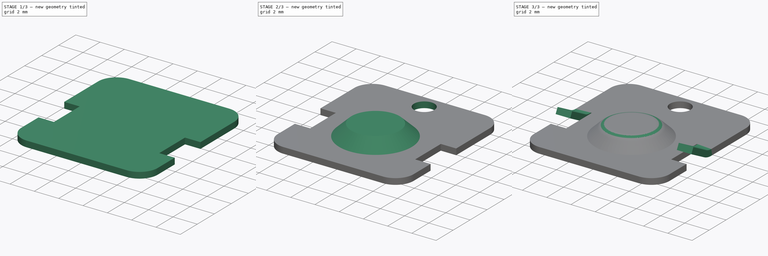
[diagram: build sequence overview — one tinted view per stage of 3, left to right]
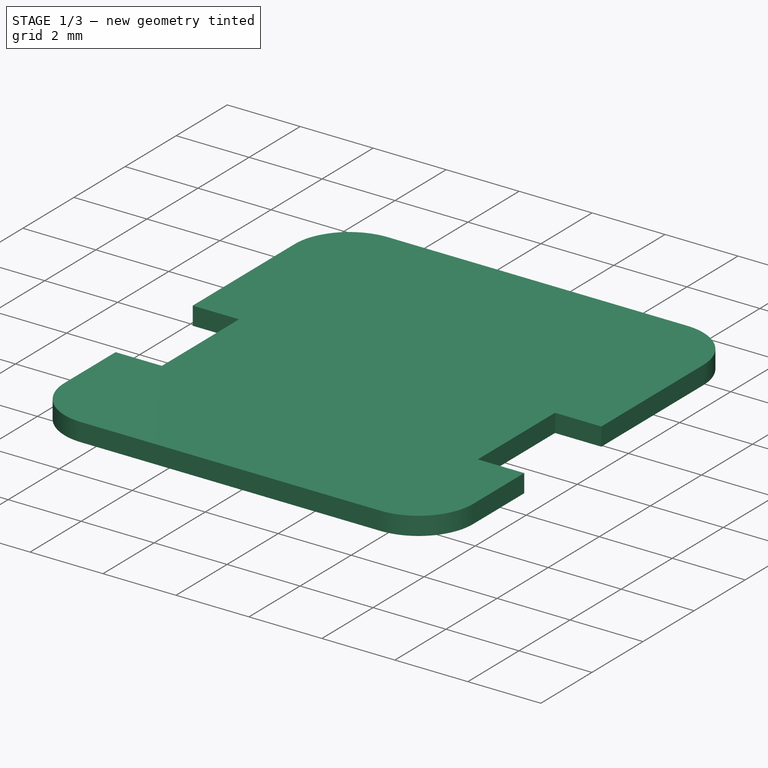
[diagram: stage 1 of 3 — iso view after this stage's code; geometry added in this stage tinted green]
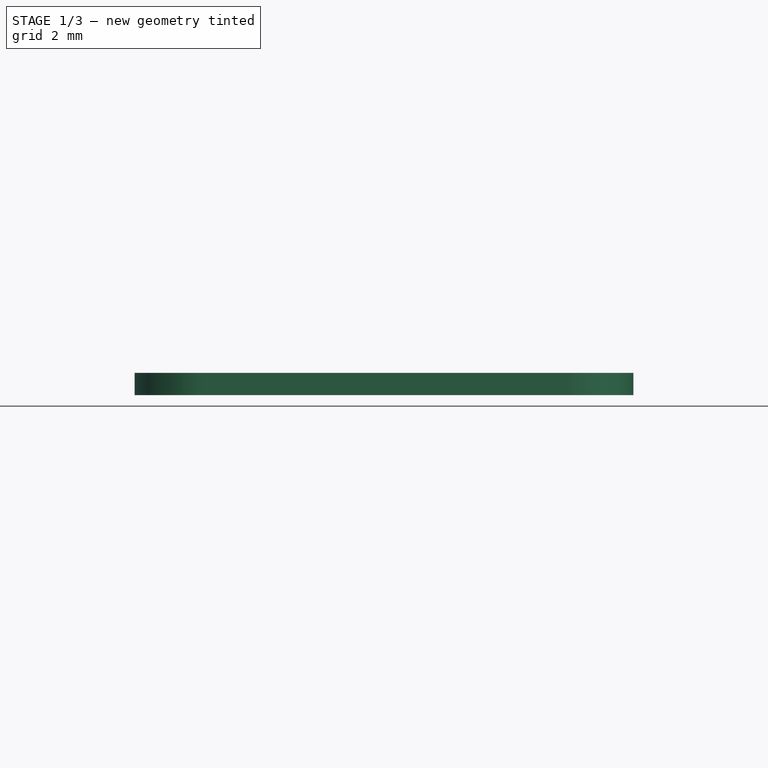
[diagram: stage 1 of 3 — front view after this stage's code; geometry added in this stage tinted green]
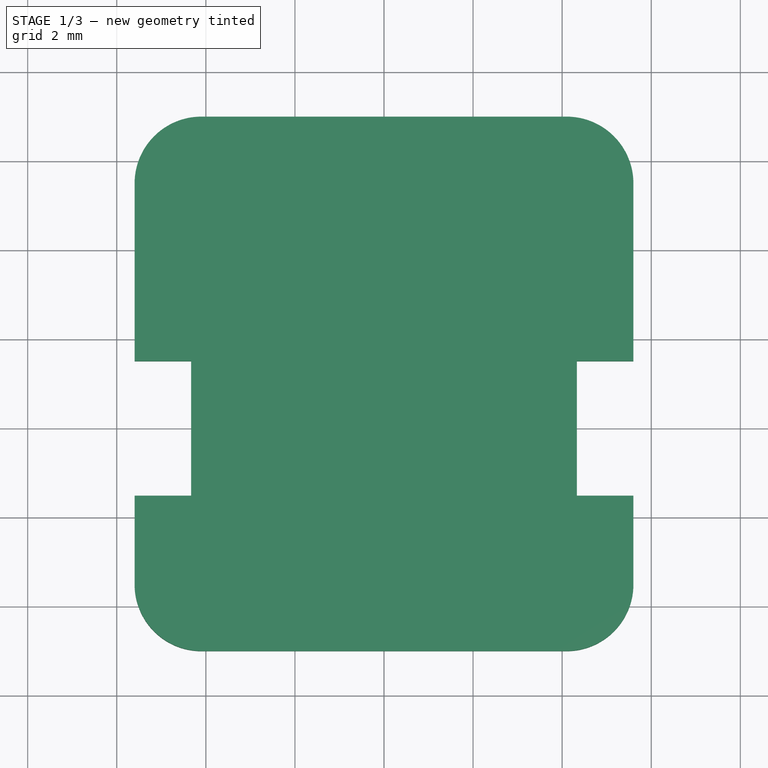
[diagram: stage 1 of 3 — top view after this stage's code; geometry added in this stage tinted green]
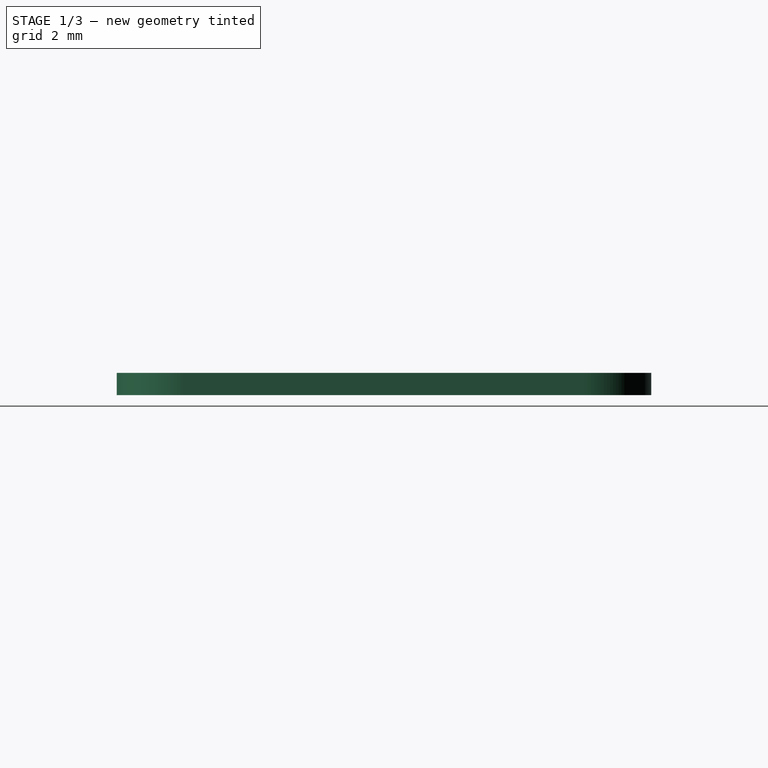
[diagram: stage 1 of 3 — right view after this stage's code; geometry added in this stage tinted green]
FCSTD DOCUMENT  (FreeCAD 0.19R24291 (Git))
Label: Battery_Contact_Flat
Comment: Keystone 5219, 'AA' Male Battery Contact
License: Creative Commons Attribution-NonCommercial-ShareAlike
LicenseURL: http://creativecommons.org/licenses/by-nc-sa/4.0/
objects: Sketcher::SketchObject×5, PartDesign::Pad×2, PartDesign::Hole×2, PartDesign::Fillet×2, PartDesign::CoordinateSystem×1, PartDesign::Revolution×1, PartDesign::Mirrored×1, PartDesign::Body×1, App::Part×1
note: 22 computed .brp shape members not serialized (recipe doc carries the construction recipe); baked Part::Feature solids carry a one-line shape summary decoded from their .brp

FEATURE [PartDesign::CoordinateSystem] LCS_0
  AttacherType = Attacher::AttachEngine3D
  MapMode = 2
  Support = -> [X_Axis]
FEATURE [Sketcher::SketchObject] Sketch
  FullyConstrained = true
  MapMode = 5
  Support = -> [XY_Plane001]
  sketch-geometry (19):
    g0: LineSegment StartX=0 StartY=-5 StartZ=0 EndX=5.6 EndY=-5 EndZ=0
    g1: LineSegment StartX=5.6 StartY=7 StartZ=0 EndX=1.5 EndY=7 EndZ=0
    g2: LineSegment StartX=1.5 StartY=7 StartZ=0 EndX=1.5 EndY=11.84 EndZ=0
    g3: ArcOfCircle CenterX=0 CenterY=11.84 CenterZ=0 NormalX=0 NormalY=0 NormalZ=1 AngleXU=0 Radius=1.5 StartAngle=3e-16 EndAngle=1.5708
    g4: LineSegment StartX=0 StartY=-5 StartZ=0 EndX=-5.6 EndY=-5 EndZ=0
    g5: LineSegment StartX=-5.6 StartY=7 StartZ=0 EndX=-1.5 EndY=7 EndZ=0
    g6: LineSegment StartX=-1.5 StartY=7 StartZ=0 EndX=-1.5 EndY=11.84 EndZ=0
    g7: ArcOfCircle CenterX=0 CenterY=11.84 CenterZ=0 NormalX=0 NormalY=0 NormalZ=1 AngleXU=0 Radius=1.5 StartAngle=1.5708 EndAngle=3.14159
    g8: LineSegment StartX=5.6 StartY=7 StartZ=0 EndX=5.6 EndY=1.51 EndZ=0
    g9: LineSegment StartX=5.6 StartY=1.51 StartZ=0 EndX=4.33 EndY=1.51 EndZ=0
    g10: LineSegment StartX=4.33 StartY=1.51 StartZ=0 EndX=4.33 EndY=-1.51 EndZ=0
    g11: LineSegment StartX=4.33 StartY=-1.51 StartZ=0 EndX=5.6 EndY=-1.51 EndZ=0
    g12: LineSegment StartX=5.6 StartY=-1.51 StartZ=0 EndX=5.6 EndY=-5 EndZ=0
    g13: LineSegment StartX=-5.6 StartY=1.51 StartZ=0 EndX=-4.33 EndY=1.51 EndZ=0
    g14: LineSegment StartX=-5.6 StartY=7 StartZ=0 EndX=-5.6 EndY=1.51 EndZ=0
    g15: LineSegment StartX=-4.33 StartY=1.51 StartZ=0 EndX=-4.33 EndY=-1.51 EndZ=0
    g16: LineSegment StartX=-5.6 StartY=-1.51 StartZ=0 EndX=-5.6 EndY=-5 EndZ=0
    g17: LineSegment StartX=-4.33 StartY=-1.51 StartZ=0 EndX=-5.6 EndY=-1.51 EndZ=0
    g18: LineSegment StartX=-1.5 StartY=7 StartZ=0 EndX=1.5 EndY=7 EndZ=0
  constraints (49):
    c: PointOnObject(g0,g-2)
    c: Horizontal(g0)
    c: Horizontal(g1)
    c: Coincident(g1,g2)
    c: Vertical(g2)
    c: Tangent(g2,g3) = -1.5708
    c: PointOnObject(g3,g-2)
    c: PointOnObject(g3,g-2)
    c: DistanceY(g0) = -5
    c: Distance(g0) = 5.6
    c: DistanceX(g1) = 1.5
    c: Distance(g0,g3) = 18.34
    c: Horizontal(g4)
    c: Coincident(g5,g6)
    c: Tangent(g6,g7) = 1.5708
    c: PointOnObject(g4,g-2)
    c: Coincident(g7,g3)
    c: Coincident(g7,g3)
    c: Symmetric(g5,g1,g-2)
    c: Symmetric(g5,g1,g-2)
    c: Coincident(g1,g8)
    c: Vertical(g8)
    c: Coincident(g8,g9)
    c: Coincident(g9,g10)
    c: Vertical(g10)
    c: Coincident(g10,g11)
    c: Coincident(g11,g12)
    c: Coincident(g12,g0)
    c: Horizontal(g9)
    c: Horizontal(g11)
    c: Symmetric(g11,g8,g-1)
    c: Distance(g1,g0) = 12
    c: Vertical(g12)
    c: Distance(g11,g1) = 8.51
    c: Distance(g9) = 1.27
    c: Coincident(g14,g13)
    c: Coincident(g13,g15)
    c: Vertical(g15)
    c: Coincident(g15,g17)
    c: Coincident(g17,g16)
    c: Horizontal(g17)
    c: Symmetric(g13,g9,g-2)
    c: Symmetric(g4,g0,g-2)
    c: Symmetric(g16,g11,g-2)
    c: Coincident(g16,g4)
    c: Symmetric(g13,g8,g-2)
    c: Coincident(g14,g5)
    c: Coincident(g18,g5)
    c: Coincident(g18,g1)
FEATURE [PartDesign::Pad] Pad
  Direction = (1,1,1)
  Length = 0.5
  Length2 = 100
  Profile = -> Sketch
  Refine = true
  Type = 0
FEATURE [Sketcher::SketchObject] Sketch001
  FullyConstrained = true
  MapMode = 5
  Support = -> [XY_Plane001]
  sketch-geometry (1):
    g0: Circle CenterX=6.9e-15 CenterY=11.84 CenterZ=0 NormalX=0 NormalY=0 NormalZ=1 AngleXU=0 Radius=0.5
  constraints (3):
    c: Radius(g0) = 0.5
    c: DistanceY(g0) = 11.84
    c: PointOnObject(g0,g-2)
FEATURE [PartDesign::Hole] Hole
  BaseFeature = -> Pad
  Depth = 25
  DepthType = 1
  Diameter = 1.52
  DrillForDepth = false
  DrillPoint = 1
  DrillPointAngle = 118
  HoleCutCountersinkAngle = 90
  HoleCutCustomValues = false
  HoleCutDepth = 0
  HoleCutDiameter = 6.1
  HoleCutType = 0
  ModelActualThread = false
  Profile = -> Sketch001
  Refine = true
  Reversed = true
  Tapered = false
  TaperedAngle = 90
  ThreadAngle = 0
  ThreadClass = 0
  ThreadCutOffInner = 0
  ThreadCutOffOuter = 0
  ThreadDirection = 0
  ThreadFit = 0
  ThreadPitch = 0
  ThreadSize = 0
  ThreadType = 0
  Threaded = false
FEATURE [PartDesign::Fillet] Fillet
  Base = -> Hole [Edge1,Edge14,Edge33,Edge25]
  BaseFeature = -> Hole
  Radius = 1.5
  Refine = true
  SupportTransform = false
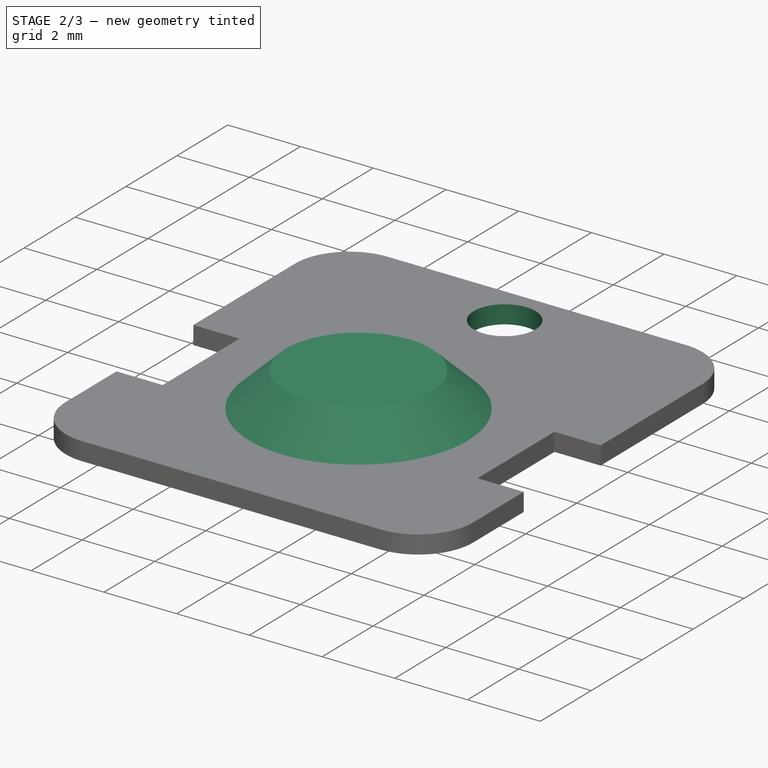
[diagram: stage 2 of 3 — iso view after this stage's code; geometry added in this stage tinted green]
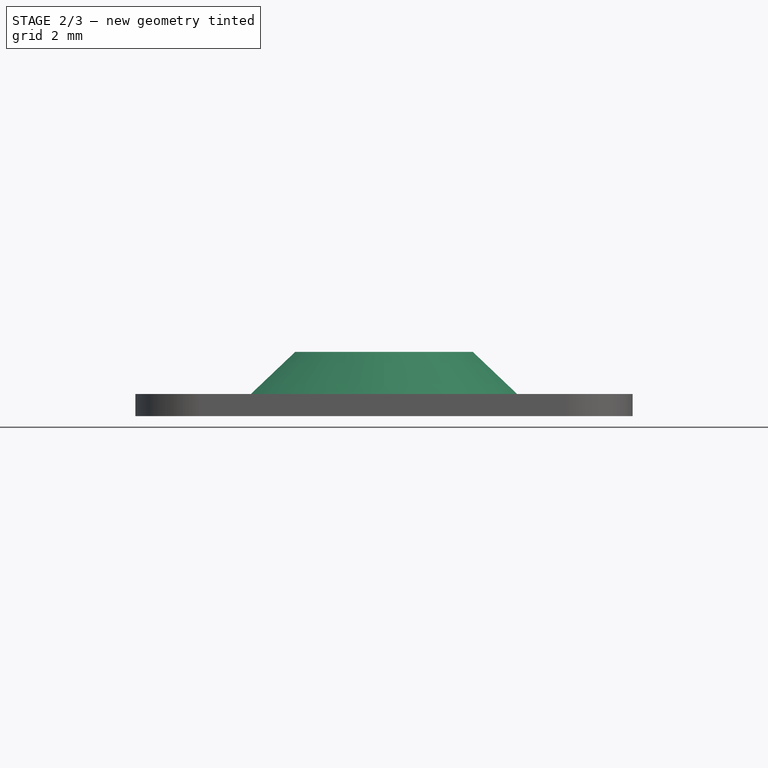
[diagram: stage 2 of 3 — front view after this stage's code; geometry added in this stage tinted green]
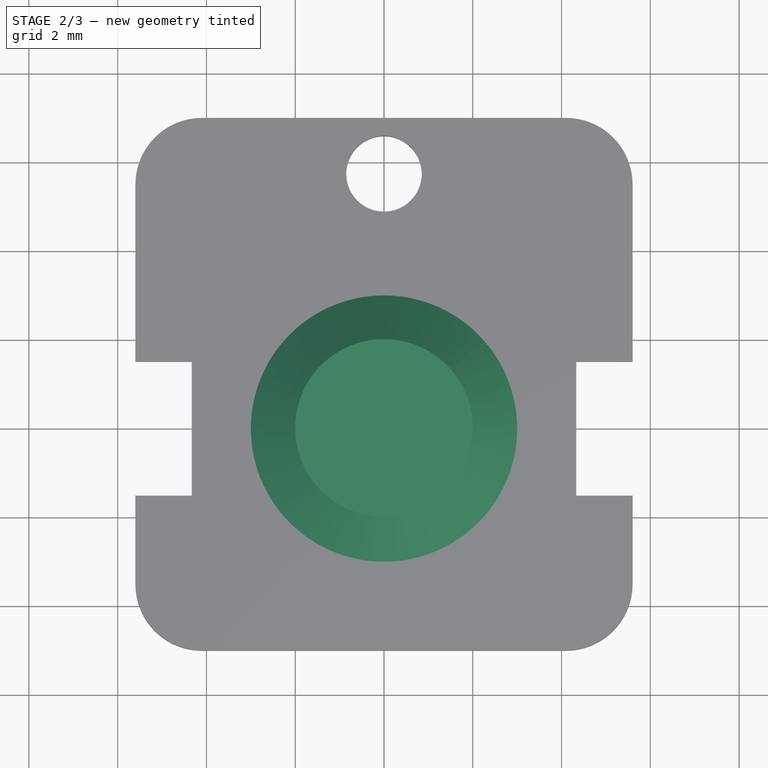
[diagram: stage 2 of 3 — top view after this stage's code; geometry added in this stage tinted green]
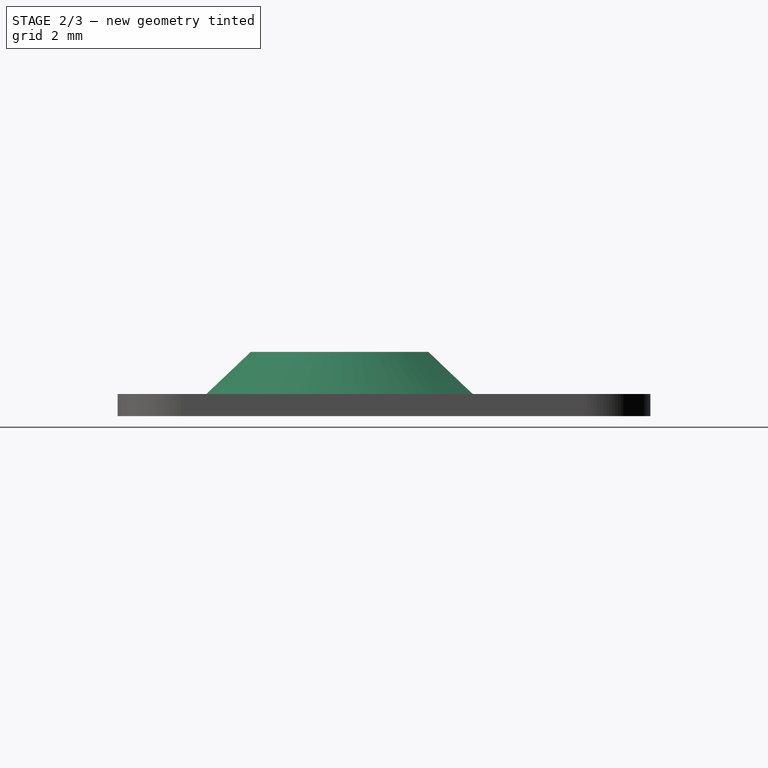
[diagram: stage 2 of 3 — right view after this stage's code; geometry added in this stage tinted green]
FEATURE [Sketcher::SketchObject] Sketch002
  FullyConstrained = true
  MapMode = 5
  Support = -> [XY_Plane001]
  sketch-geometry (1):
    g0: Circle CenterX=0 CenterY=5.74 CenterZ=0 NormalX=0 NormalY=0 NormalZ=1 AngleXU=0 Radius=1
  constraints (3):
    c: PointOnObject(g0,g-2)
    c: DistanceY(g0) = 5.74
    c: Radius(g0) = 1
FEATURE [PartDesign::Hole] Hole001
  BaseFeature = -> Fillet
  Depth = 25
  DepthType = 1
  Diameter = 1.7
  DrillForDepth = false
  DrillPoint = 1
  DrillPointAngle = 118
  HoleCutCountersinkAngle = 90
  HoleCutCustomValues = false
  HoleCutDepth = 0
  HoleCutDiameter = 6.1
  HoleCutType = 0
  ModelActualThread = false
  Profile = -> Sketch002
  Refine = true
  Reversed = true
  Tapered = false
  TaperedAngle = 90
  ThreadAngle = 0
  ThreadClass = 0
  ThreadCutOffInner = 0
  ThreadCutOffOuter = 0
  ThreadDirection = 0
  ThreadFit = 0
  ThreadPitch = 0
  ThreadSize = 0
  ThreadType = 0
  Threaded = false
FEATURE [Sketcher::SketchObject] Sketch003
  FullyConstrained = true
  MapMode = 5
  Placement = pos=(0,0,0) rot=(0.57735,0.57735,0.57735;2.0944rad)
  Support = -> [YZ_Plane001]
  sketch-geometry (4):
    g0: LineSegment StartX=-3 StartY=0.5 StartZ=0 EndX=0 EndY=0.5 EndZ=0
    g1: LineSegment StartX=0 StartY=0.5 StartZ=0 EndX=0 EndY=1.45 EndZ=0
    g2: LineSegment StartX=0 StartY=1.45 StartZ=0 EndX=-2 EndY=1.45 EndZ=0
    g3: LineSegment StartX=-2 StartY=1.45 StartZ=0 EndX=-3 EndY=0.5 EndZ=0
  constraints (12):
    c: Coincident(g0,g1)
    c: Coincident(g1,g2)
    c: Coincident(g2,g3)
    c: Coincident(g3,g0)
    c: Distance(g0) = 3
    c: Distance(g2) = 2
    c: Horizontal(g0)
    c: Horizontal(g2)
    c: PointOnObject(g1,g-2)
    c: PointOnObject(g0,g-2)
    c: DistanceY(g0) = 0.5
    c: DistanceY(g1) = 1.45
FEATURE [PartDesign::Revolution] Revolution
  Angle = 360
  Axis = (-2e-16,3e-16,1)
  Base = (0,0,0)
  BaseFeature = -> Hole001
  Profile = -> Sketch003
  ReferenceAxis = -> Sketch003 [V_Axis]
  Refine = true
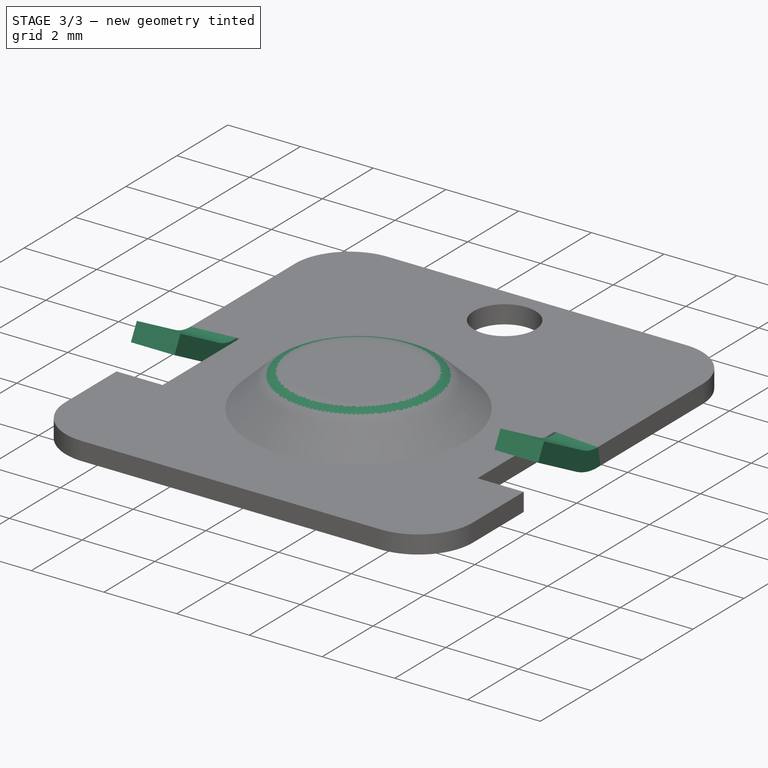
[diagram: stage 3 of 3 — iso view after this stage's code; geometry added in this stage tinted green]
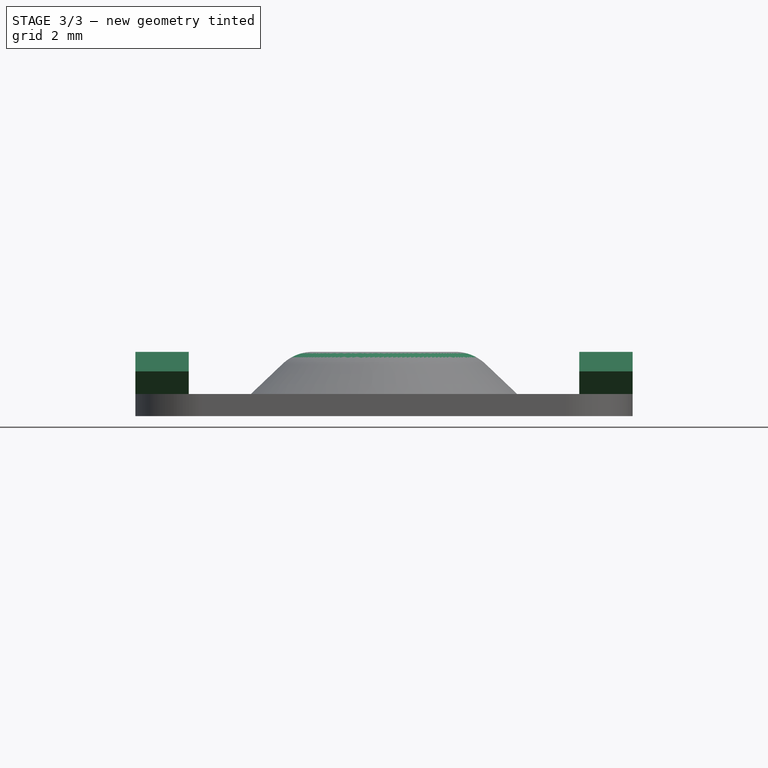
[diagram: stage 3 of 3 — front view after this stage's code; geometry added in this stage tinted green]
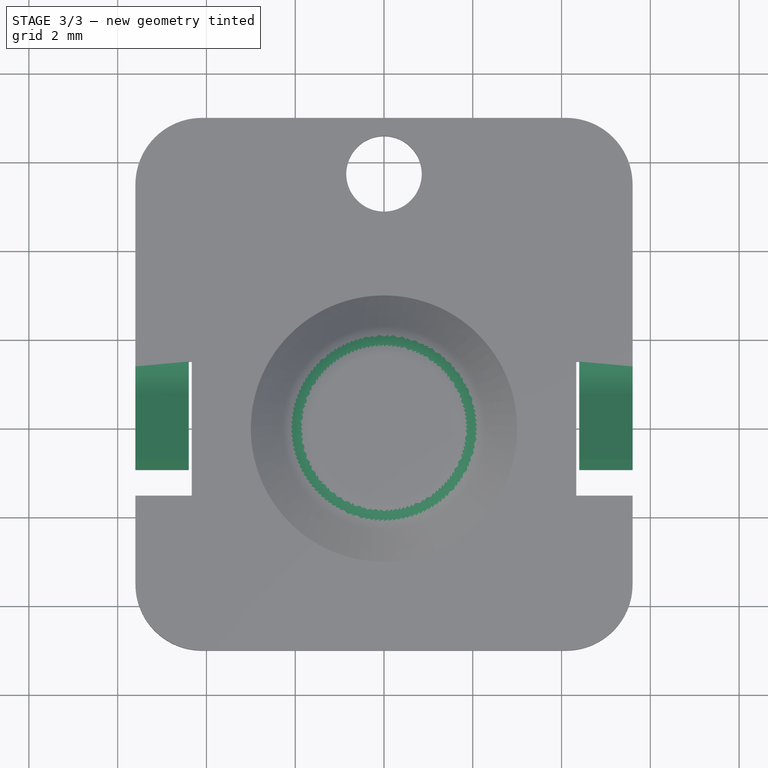
[diagram: stage 3 of 3 — top view after this stage's code; geometry added in this stage tinted green]
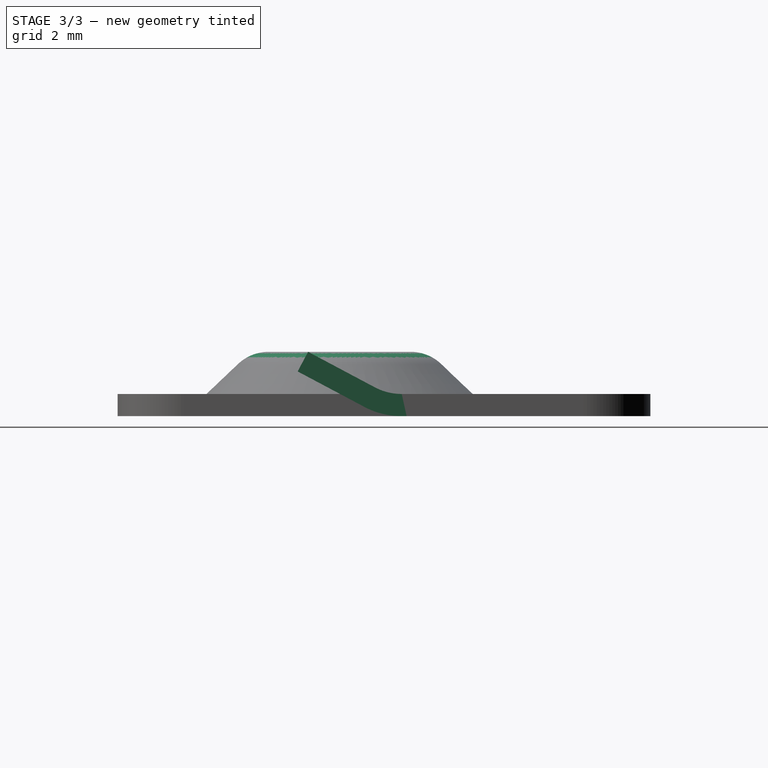
[diagram: stage 3 of 3 — right view after this stage's code; geometry added in this stage tinted green]
FEATURE [Sketcher::SketchObject] Sketch004
  AttachmentOffset = pos=(0,0,5.6) rot=(0,0,1;0rad)
  FullyConstrained = true
  MapMode = 5
  Placement = pos=(5.6,-1.2e-15,1.2e-15) rot=(0.57735,0.57735,0.57735;2.0944rad)
  Support = -> [YZ_Plane001]
  sketch-geometry (8):
    g0: LineSegment StartX=2 StartY=0 StartZ=0 EndX=2 EndY=0.5 EndZ=0
    g1: LineSegment StartX=2 StartY=0.5 StartZ=0 EndX=1.4 EndY=0.5 EndZ=0
    g2: ArcOfCircle CenterX=1.4 CenterY=1.7977 CenterZ=0 NormalX=0 NormalY=0 NormalZ=1 AngleXU=0 Radius=1.2977 StartAngle=4.2237 EndAngle=4.71239
    g3: LineSegment StartX=0.790769 StartY=0.651898 StartZ=0 EndX=-0.710242 EndY=1.45 EndZ=0
    g4: LineSegment StartX=-0.710242 StartY=1.45 StartZ=0 EndX=-0.944978 EndY=1.00853 EndZ=0
    g5: LineSegment StartX=-0.944978 StartY=1.00853 StartZ=0 EndX=0.556033 EndY=0.210425 EndZ=0
    g6: ArcOfCircle CenterX=1.4 CenterY=1.7977 CenterZ=0 NormalX=0 NormalY=0 NormalZ=1 AngleXU=0 Radius=1.7977 StartAngle=4.2237 EndAngle=4.71239
    g7: LineSegment StartX=1.4 StartY=7.5926e-12 StartZ=0 EndX=2 EndY=0 EndZ=0
  constraints (21):
    c: PointOnObject(g0,g-1)
    c: Coincident(g0,g1)
    c: Horizontal(g1)
    c: Tangent(g1,g2) = 1.5708
    c: Tangent(g2,g3) = 1.5708
    c: Coincident(g3,g4)
    c: Coincident(g4,g5)
    c: Tangent(g5,g6) = -1.5708
    c: PointOnObject(g6,g-1)
    c: Tangent(g6,g7) = -1.5708
    c: Coincident(g7,g0)
    c: Vertical(g0)
    c: Coincident(g2,g6)
    c: Perpendicular(g3,g4)
    c: Perpendicular(g4,g5)
    c: DistanceX(g6) = 1.4
    c: Distance(g0) = 0.5
    c: DistanceY(g3) = 1.45
    c: Angle(g5,g-1) = 0.488692
    c: DistanceX(g0) = 2
    c: Distance(g3) = 1.7
FEATURE [PartDesign::Pad] Pad001
  BaseFeature = -> Revolution
  Direction = (1,1,1)
  Length = 1.2
  Length2 = 100
  Profile = -> Sketch004
  Refine = true
  Reversed = true
  Type = 0
FEATURE [PartDesign::Fillet] Fillet001
  Base = -> Pad001 [Edge72]
  BaseFeature = -> Pad001
  Radius = 1
  Refine = true
  SupportTransform = false
FEATURE [PartDesign::Mirrored] Mirrored
  BaseFeature = -> Fillet001
  MirrorPlane = -> YZ_Plane001
  Originals = -> [Pad001]
  Refine = true
FEATURE [PartDesign::Body] Body
  Group = -> [Sketch,Pad,Sketch001,Hole,Fillet,Sketch002,Hole001,Sketch003,Revolution,Sketch004,Pad001,Fillet001,Mirrored]
  Origin = -> Origin001
  Tip = -> Mirrored
FEATURE [App::Part] Flat_Contact
  Group = -> [LCS_0,Body]
  Origin = -> Origin
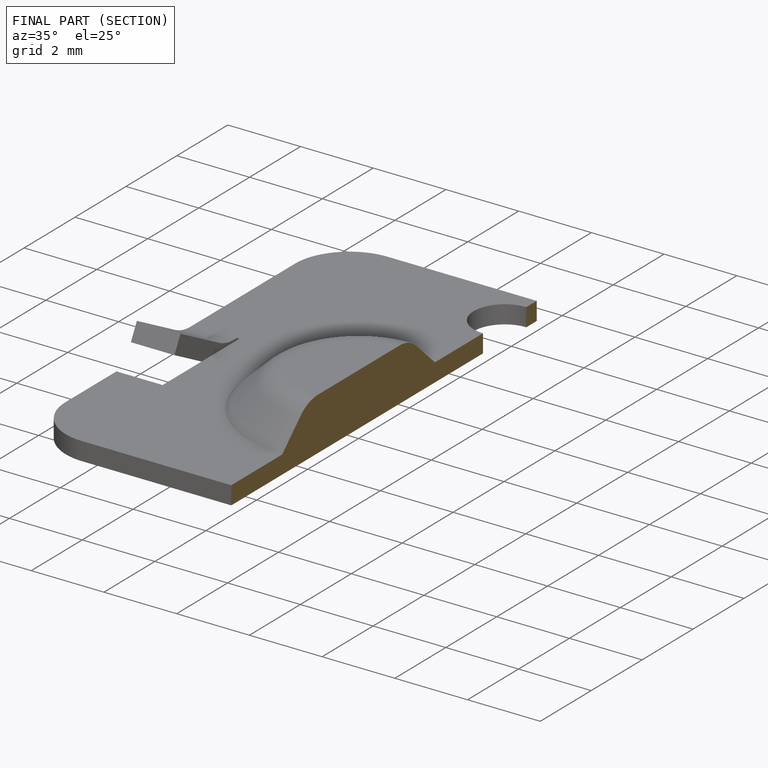
[diagram: finished part — half-section view (interior)]
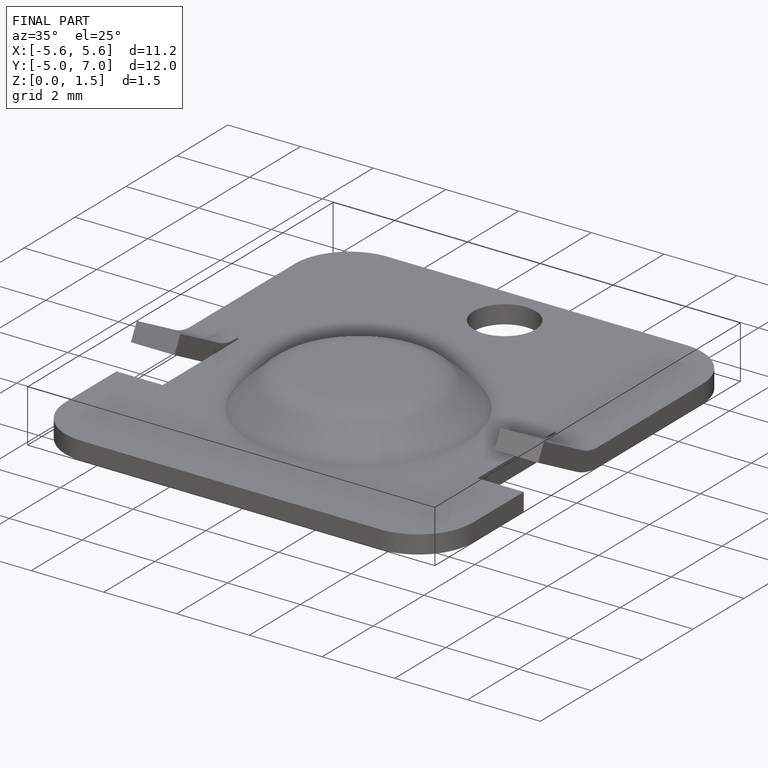
[diagram: finished part — iso view with bounding-box wireframe]
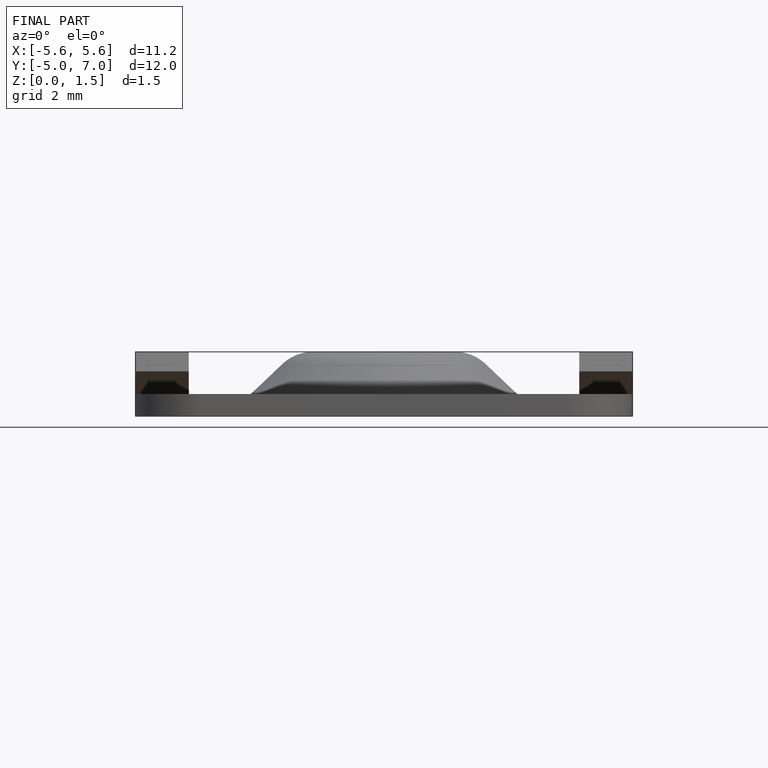
[diagram: finished part — front view with bounding-box wireframe]
